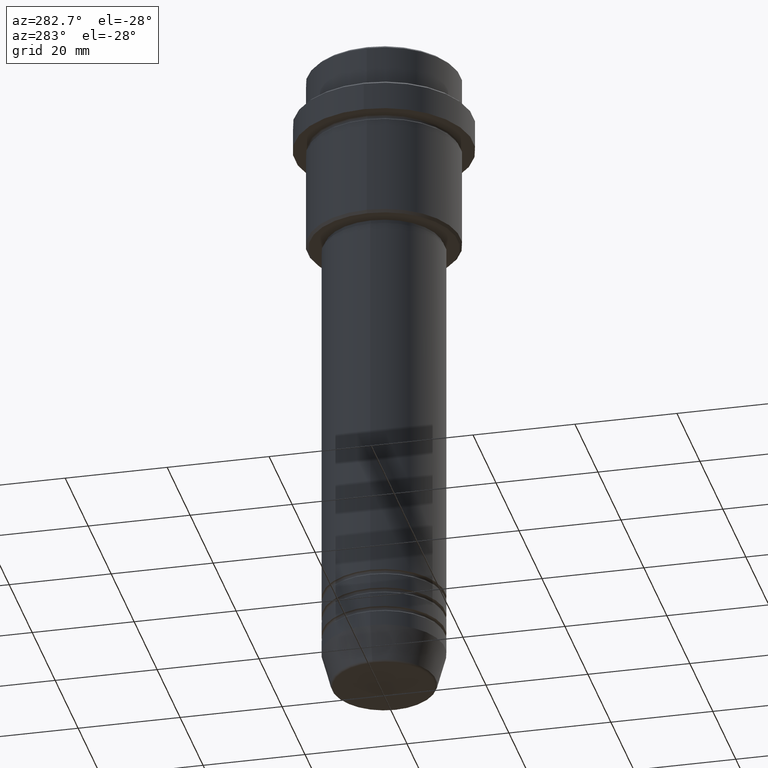
[diagram: clean part render]
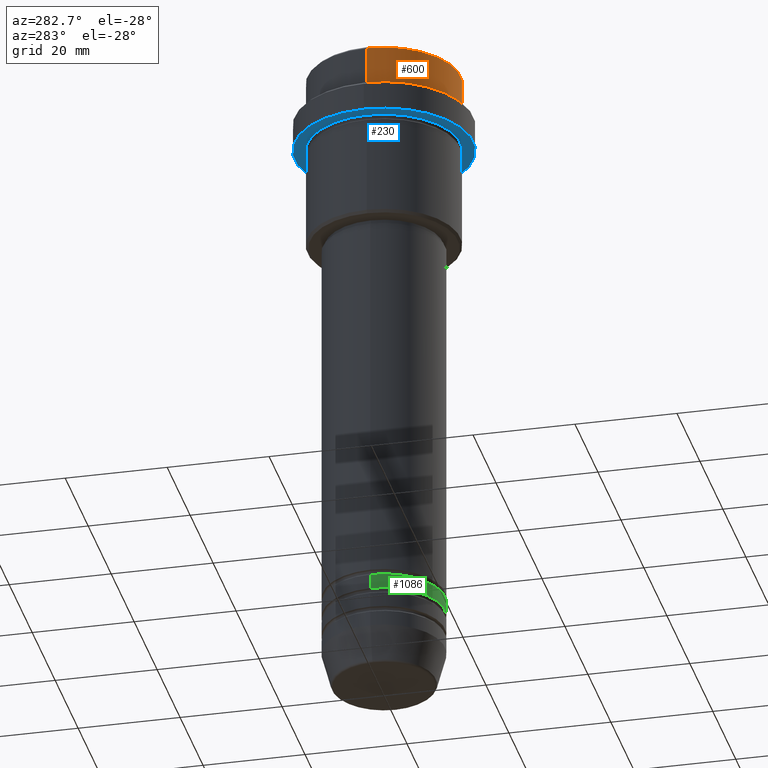
[diagram: same view with three faces highlighted in distinct colors, each labeled with its STEP entity id]
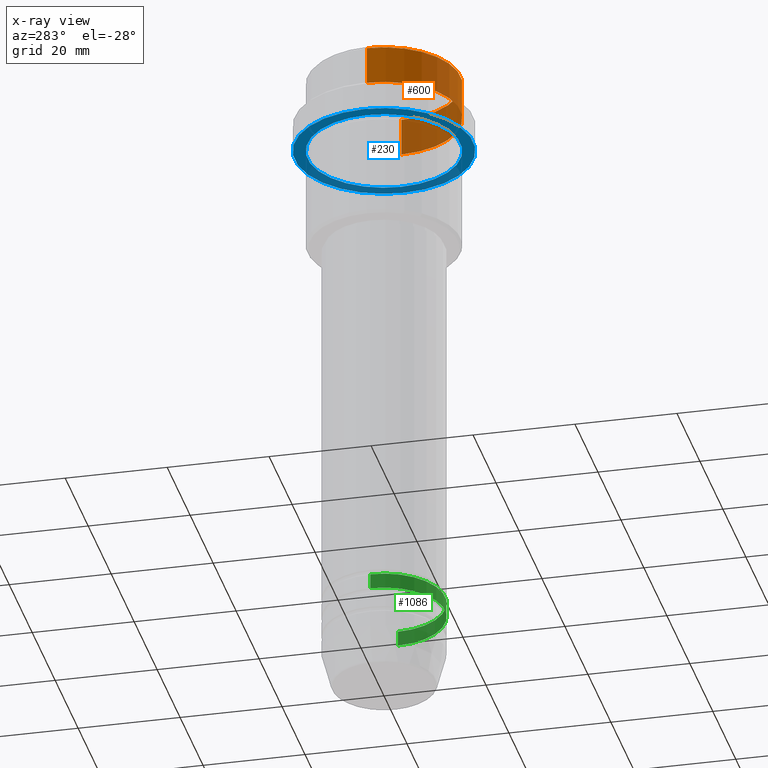
[diagram: x-ray of the same camera — body ghosted, the three highlighted faces saturated]
A machine part, auxiliary view with three faces highlighted in distinct colors.
The next image is the same camera in x-ray (body ghosted, the three faces saturated) — at least one of them is partly hidden behind the body in this view.
Their STEP definitions:

[orange] entity #600 — the highlighted cylindrical surface (partial cylindrical patch) has radius 15 mm, axis along (-0, -0, 1).
#36 = VERTEX_POINT ( 'NONE', #592 ) ;
#54 = ORIENTED_EDGE ( 'NONE', *, *, #1020, .F. ) ;
#60 = CARTESIAN_POINT ( 'NONE',  ( -15.00000000000000000, 1.836970198721029589E-15, -7.999999999999998224 ) ) ;
#90 = VERTEX_POINT ( 'NONE', #60 ) ;
#98 = CARTESIAN_POINT ( 'NONE',  ( 0.000000000000000000, 0.000000000000000000, -0.4999999999999970024 ) ) ;
#102 = CARTESIAN_POINT ( 'NONE',  ( -15.00000000000000000, 1.836970198721029589E-15, 0.000000000000000000 ) ) ;
#133 = ORIENTED_EDGE ( 'NONE', *, *, #410, .T. ) ;
#136 = CARTESIAN_POINT ( 'NONE',  ( 0.000000000000000000, 0.000000000000000000, 0.000000000000000000 ) ) ;
#177 = ORIENTED_EDGE ( 'NONE', *, *, #1081, .T. ) ;
#214 = DIRECTION ( 'NONE',  ( 1.000000000000000000, 0.000000000000000000, 0.000000000000000000 ) ) ;
#306 = LINE ( 'NONE', #739, #1038 ) ;
#337 = CARTESIAN_POINT ( 'NONE',  ( 15.00000000000000000, 0.000000000000000000, -0.4999999999999970024 ) ) ;
#410 = EDGE_CURVE ( 'NONE', #1414, #36, #1104, .T. ) ;
#429 = CIRCLE ( 'NONE', #1366, 15.00000000000000000 ) ;
#468 = ORIENTED_EDGE ( 'NONE', *, *, #887, .T. ) ;
#552 = AXIS2_PLACEMENT_3D ( 'NONE', #98, #1281, #852 ) ;
#573 = AXIS2_PLACEMENT_3D ( 'NONE', #136, #892, #1209 ) ;
#592 = CARTESIAN_POINT ( 'NONE',  ( -15.00000000000000000, 1.836970198721029589E-15, -0.4999999999999970024 ) ) ;
#600 = ADVANCED_FACE ( 'NONE', ( #658 ), #1115, .T. ) ;
#658 = FACE_OUTER_BOUND ( 'NONE', #1075, .T. ) ;
#739 = CARTESIAN_POINT ( 'NONE',  ( 15.00000000000000000, 0.000000000000000000, 0.000000000000000000 ) ) ;
#852 = DIRECTION ( 'NONE',  ( 1.000000000000000000, 0.000000000000000000, 0.000000000000000000 ) ) ;
#887 = EDGE_CURVE ( 'NONE', #1010, #1414, #306, .T. ) ;
#891 = DIRECTION ( 'NONE',  ( -0.000000000000000000, -0.000000000000000000, 1.000000000000000000 ) ) ;
#892 = DIRECTION ( 'NONE',  ( -0.000000000000000000, -0.000000000000000000, 1.000000000000000000 ) ) ;
#981 = DIRECTION ( 'NONE',  ( -0.000000000000000000, -0.000000000000000000, 1.000000000000000000 ) ) ;
#1010 = VERTEX_POINT ( 'NONE', #1214 ) ;
#1020 = EDGE_CURVE ( 'NONE', #90, #36, #1319, .T. ) ;
#1038 = VECTOR ( 'NONE', #1401, 1000.000000000000000 ) ;
#1075 = EDGE_LOOP ( 'NONE', ( #54, #177, #468, #133 ) ) ;
#1081 = EDGE_CURVE ( 'NONE', #90, #1010, #429, .T. ) ;
#1104 = CIRCLE ( 'NONE', #552, 15.00000000000000000 ) ;
#1115 = CYLINDRICAL_SURFACE ( 'NONE', #573, 15.00000000000000000 ) ;
#1209 = DIRECTION ( 'NONE',  ( 1.000000000000000000, 0.000000000000000000, 0.000000000000000000 ) ) ;
#1214 = CARTESIAN_POINT ( 'NONE',  ( 15.00000000000000000, 0.000000000000000000, -7.999999999999998224 ) ) ;
#1281 = DIRECTION ( 'NONE',  ( 0.000000000000000000, 0.000000000000000000, -1.000000000000000000 ) ) ;
#1306 = CARTESIAN_POINT ( 'NONE',  ( 0.000000000000000000, 0.000000000000000000, -7.999999999999998224 ) ) ;
#1319 = LINE ( 'NONE', #102, #1390 ) ;
#1366 = AXIS2_PLACEMENT_3D ( 'NONE', #1306, #891, #214 ) ;
#1390 = VECTOR ( 'NONE', #981, 1000.000000000000000 ) ;
#1401 = DIRECTION ( 'NONE',  ( -0.000000000000000000, -0.000000000000000000, 1.000000000000000000 ) ) ;
#1414 = VERTEX_POINT ( 'NONE', #337 ) ;

[blue] entity #230 — the highlighted planar face has unit normal (0, 0, -1).
#12 = AXIS2_PLACEMENT_3D ( 'NONE', #319, #192, #949 ) ;
#64 = AXIS2_PLACEMENT_3D ( 'NONE', #395, #825, #1255 ) ;
#86 = AXIS2_PLACEMENT_3D ( 'NONE', #232, #885, #345 ) ;
#97 = CARTESIAN_POINT ( 'NONE',  ( -14.99999999999999645, 0.000000000000000000, -15.00000000000000000 ) ) ;
#192 = DIRECTION ( 'NONE',  ( -0.000000000000000000, -0.000000000000000000, 1.000000000000000000 ) ) ;
#230 = ADVANCED_FACE ( 'NONE', ( #1157, #1266 ), #820, .T. ) ;
#232 = CARTESIAN_POINT ( 'NONE',  ( 0.000000000000000000, 0.000000000000000000, -15.00000000000000000 ) ) ;
#283 = DIRECTION ( 'NONE',  ( 1.000000000000000000, 0.000000000000000000, 0.000000000000000000 ) ) ;
#287 = DIRECTION ( 'NONE',  ( 0.000000000000000000, 0.000000000000000000, -1.000000000000000000 ) ) ;
#296 = ORIENTED_EDGE ( 'NONE', *, *, #1282, .F. ) ;
#319 = CARTESIAN_POINT ( 'NONE',  ( 0.000000000000000000, 0.000000000000000000, -15.00000000000000000 ) ) ;
#345 = DIRECTION ( 'NONE',  ( -1.000000000000000000, 0.000000000000000000, 0.000000000000000000 ) ) ;
#346 = CARTESIAN_POINT ( 'NONE',  ( 14.99999999999999645, 1.836970198721029194E-15, -15.00000000000000000 ) ) ;
#395 = CARTESIAN_POINT ( 'NONE',  ( 0.000000000000000000, 0.000000000000000000, -15.00000000000000178 ) ) ;
#402 = VERTEX_POINT ( 'NONE', #632 ) ;
#445 = EDGE_CURVE ( 'NONE', #656, #936, #1386, .T. ) ;
#448 = CIRCLE ( 'NONE', #630, 17.50000000000000000 ) ;
#564 = ORIENTED_EDGE ( 'NONE', *, *, #445, .T. ) ;
#630 = AXIS2_PLACEMENT_3D ( 'NONE', #1263, #717, #283 ) ;
#632 = CARTESIAN_POINT ( 'NONE',  ( -17.50000000000000000, 2.143131898507868248E-15, -15.00000000000000178 ) ) ;
#656 = VERTEX_POINT ( 'NONE', #346 ) ;
#669 = AXIS2_PLACEMENT_3D ( 'NONE', #1251, #287, #714 ) ;
#714 = DIRECTION ( 'NONE',  ( -1.000000000000000000, 0.000000000000000000, -0.000000000000000000 ) ) ;
#717 = DIRECTION ( 'NONE',  ( -0.000000000000000000, -0.000000000000000000, 1.000000000000000000 ) ) ;
#758 = EDGE_LOOP ( 'NONE', ( #296, #867 ) ) ;
#810 = CIRCLE ( 'NONE', #86, 14.99999999999999645 ) ;
#820 = PLANE ( 'NONE',  #669 ) ;
#825 = DIRECTION ( 'NONE',  ( -0.000000000000000000, -0.000000000000000000, 1.000000000000000000 ) ) ;
#867 = ORIENTED_EDGE ( 'NONE', *, *, #1298, .F. ) ;
#885 = DIRECTION ( 'NONE',  ( -0.000000000000000000, -0.000000000000000000, 1.000000000000000000 ) ) ;
#901 = CIRCLE ( 'NONE', #64, 17.50000000000000000 ) ;
#936 = VERTEX_POINT ( 'NONE', #97 ) ;
#949 = DIRECTION ( 'NONE',  ( -1.000000000000000000, 0.000000000000000000, 0.000000000000000000 ) ) ;
#990 = VERTEX_POINT ( 'NONE', #1325 ) ;
#1009 = EDGE_CURVE ( 'NONE', #936, #656, #810, .T. ) ;
#1048 = EDGE_LOOP ( 'NONE', ( #1405, #564 ) ) ;
#1157 = FACE_BOUND ( 'NONE', #1048, .T. ) ;
#1251 = CARTESIAN_POINT ( 'NONE',  ( 0.000000000000000000, 17.50000000000000000, -15.00000000000000000 ) ) ;
#1255 = DIRECTION ( 'NONE',  ( 1.000000000000000000, 0.000000000000000000, 0.000000000000000000 ) ) ;
#1263 = CARTESIAN_POINT ( 'NONE',  ( 0.000000000000000000, 0.000000000000000000, -15.00000000000000178 ) ) ;
#1266 = FACE_OUTER_BOUND ( 'NONE', #758, .T. ) ;
#1282 = EDGE_CURVE ( 'NONE', #990, #402, #448, .T. ) ;
#1298 = EDGE_CURVE ( 'NONE', #402, #990, #901, .T. ) ;
#1325 = CARTESIAN_POINT ( 'NONE',  ( 17.50000000000000000, 0.000000000000000000, -15.00000000000000178 ) ) ;
#1386 = CIRCLE ( 'NONE', #12, 14.99999999999999645 ) ;
#1405 = ORIENTED_EDGE ( 'NONE', *, *, #1009, .T. ) ;

[green] entity #1086 — the highlighted cylindrical surface (partial cylindrical patch) has radius 12 mm, axis along (-0, -0, 1).
#180 = DIRECTION ( 'NONE',  ( -0.000000000000000000, -0.000000000000000000, 1.000000000000000000 ) ) ;
#181 = AXIS2_PLACEMENT_3D ( 'NONE', #643, #536, #221 ) ;
#190 = CARTESIAN_POINT ( 'NONE',  ( -12.00000000000000000, 1.469576158976823947E-15, -115.9999999999998863 ) ) ;
#201 = EDGE_CURVE ( 'NONE', #1112, #1156, #953, .T. ) ;
#221 = DIRECTION ( 'NONE',  ( 1.000000000000000000, 0.000000000000000000, 0.000000000000000000 ) ) ;
#222 = VECTOR ( 'NONE', #485, 1000.000000000000000 ) ;
#251 = ORIENTED_EDGE ( 'NONE', *, *, #201, .T. ) ;
#334 = CIRCLE ( 'NONE', #1063, 12.00000000000000000 ) ;
#403 = DIRECTION ( 'NONE',  ( -0.000000000000000000, -0.000000000000000000, 1.000000000000000000 ) ) ;
#405 = CIRCLE ( 'NONE', #670, 12.00000000000000000 ) ;
#470 = CARTESIAN_POINT ( 'NONE',  ( -12.00000000000000000, 1.469576158976823947E-15, 0.000000000000000000 ) ) ;
#471 = EDGE_CURVE ( 'NONE', #904, #1112, #405, .T. ) ;
#485 = DIRECTION ( 'NONE',  ( -0.000000000000000000, -0.000000000000000000, 1.000000000000000000 ) ) ;
#497 = CARTESIAN_POINT ( 'NONE',  ( -12.00000000000000000, 1.469576158976823947E-15, -112.9999999999998721 ) ) ;
#511 = DIRECTION ( 'NONE',  ( 1.000000000000000000, 0.000000000000000000, 0.000000000000000000 ) ) ;
#523 = CARTESIAN_POINT ( 'NONE',  ( 0.000000000000000000, 0.000000000000000000, -112.9999999999998721 ) ) ;
#536 = DIRECTION ( 'NONE',  ( -0.000000000000000000, -0.000000000000000000, 1.000000000000000000 ) ) ;
#643 = CARTESIAN_POINT ( 'NONE',  ( 0.000000000000000000, 0.000000000000000000, 0.000000000000000000 ) ) ;
#670 = AXIS2_PLACEMENT_3D ( 'NONE', #736, #403, #511 ) ;
#710 = CARTESIAN_POINT ( 'NONE',  ( 12.00000000000000000, 0.000000000000000000, -112.9999999999998721 ) ) ;
#736 = CARTESIAN_POINT ( 'NONE',  ( 0.000000000000000000, 0.000000000000000000, -115.9999999999998863 ) ) ;
#851 = DIRECTION ( 'NONE',  ( -0.000000000000000000, -0.000000000000000000, 1.000000000000000000 ) ) ;
#866 = ORIENTED_EDGE ( 'NONE', *, *, #935, .F. ) ;
#893 = ORIENTED_EDGE ( 'NONE', *, *, #471, .T. ) ;
#904 = VERTEX_POINT ( 'NONE', #190 ) ;
#919 = VECTOR ( 'NONE', #180, 1000.000000000000000 ) ;
#935 = EDGE_CURVE ( 'NONE', #1253, #1156, #334, .T. ) ;
#953 = LINE ( 'NONE', #1254, #919 ) ;
#960 = DIRECTION ( 'NONE',  ( 1.000000000000000000, 0.000000000000000000, 0.000000000000000000 ) ) ;
#1031 = EDGE_LOOP ( 'NONE', ( #1231, #893, #251, #866 ) ) ;
#1063 = AXIS2_PLACEMENT_3D ( 'NONE', #523, #851, #960 ) ;
#1086 = ADVANCED_FACE ( 'NONE', ( #1186 ), #1192, .T. ) ;
#1112 = VERTEX_POINT ( 'NONE', #1245 ) ;
#1156 = VERTEX_POINT ( 'NONE', #710 ) ;
#1186 = FACE_OUTER_BOUND ( 'NONE', #1031, .T. ) ;
#1192 = CYLINDRICAL_SURFACE ( 'NONE', #181, 12.00000000000000000 ) ;
#1227 = LINE ( 'NONE', #470, #222 ) ;
#1228 = EDGE_CURVE ( 'NONE', #904, #1253, #1227, .T. ) ;
#1231 = ORIENTED_EDGE ( 'NONE', *, *, #1228, .F. ) ;
#1245 = CARTESIAN_POINT ( 'NONE',  ( 12.00000000000000000, 0.000000000000000000, -115.9999999999998863 ) ) ;
#1253 = VERTEX_POINT ( 'NONE', #497 ) ;
#1254 = CARTESIAN_POINT ( 'NONE',  ( 12.00000000000000000, 0.000000000000000000, 0.000000000000000000 ) ) ;